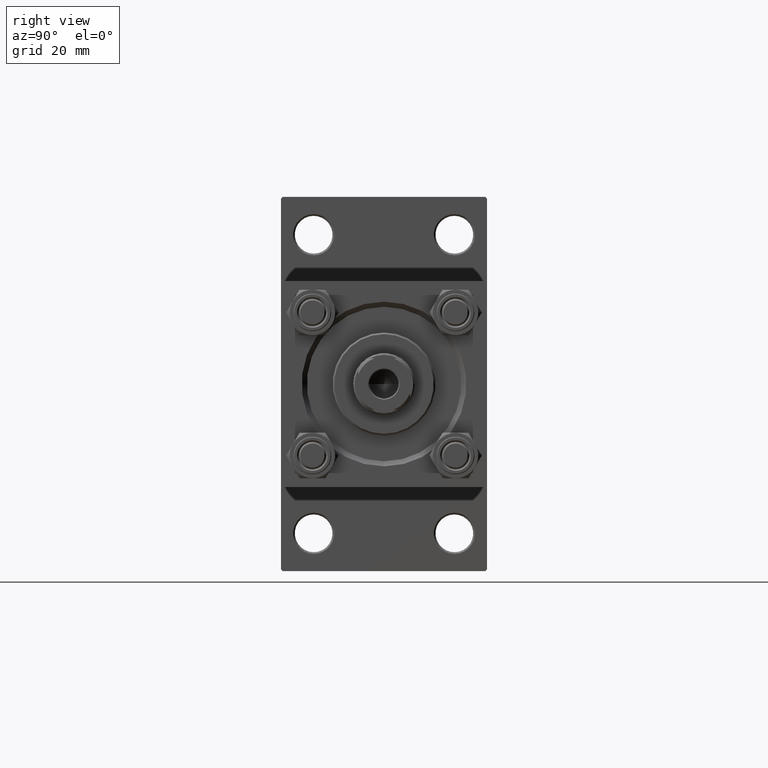
[diagram: clean part render]
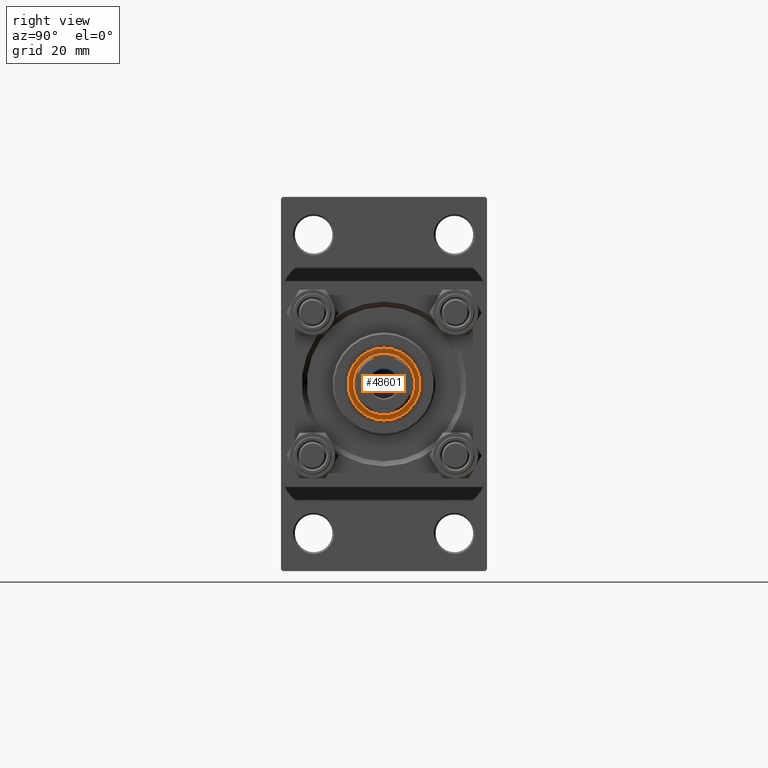
[diagram: same view with one face highlighted and labeled with its STEP entity id]
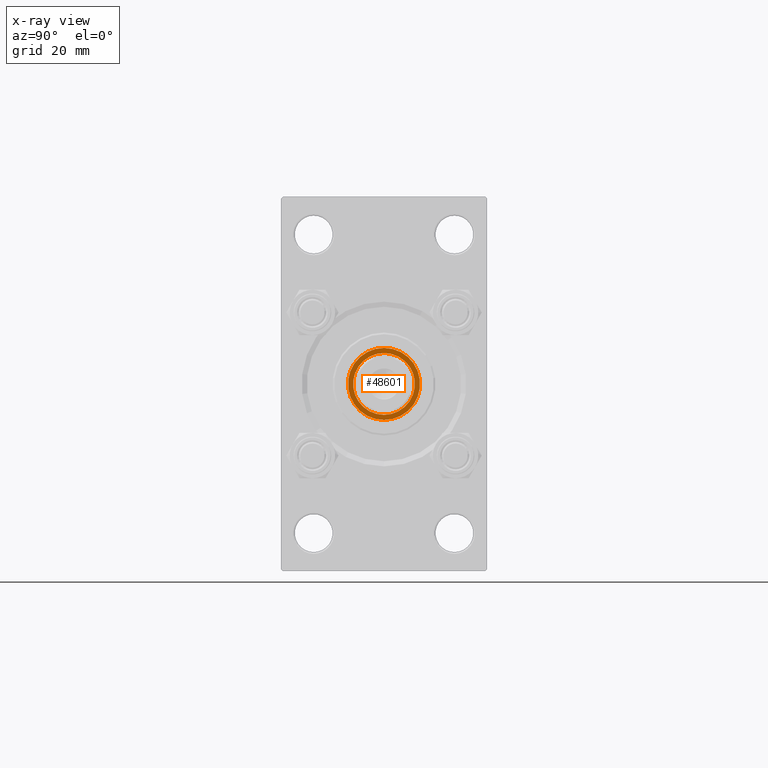
[diagram: x-ray of the same camera — body ghosted, the highlighted face saturated]
A machine part, right view. The second image highlights one B-rep face of the part: STEP entity #48601.
The next image is the same camera in x-ray: the body ghosted, the highlighted face saturated — about 0% of this face is hidden behind the body in this view.
In plain terms, the highlighted planar face has unit normal (1, 0, 0).
Its self-contained STEP definition (entity closure, byte-faithful):
#317 = AXIS2_PLACEMENT_3D ( 'NONE', #28930, #10730, #37018 ) ;
#442 = ORIENTED_EDGE ( 'NONE', *, *, #29144, .T. ) ;
#649 = DIRECTION ( 'NONE',  ( 1.000000000000000000, 0.000000000000000000, 0.000000000000000000 ) ) ;
#1851 = CARTESIAN_POINT ( 'NONE',  ( 0.000000000000000000, 0.000000000000000000, 36.19999999999999574 ) ) ;
#2127 = DIRECTION ( 'NONE',  ( 1.000000000000000000, 0.000000000000000000, -0.000000000000000000 ) ) ;
#2884 = VERTEX_POINT ( 'NONE', #6901 ) ;
#5195 = CARTESIAN_POINT ( 'NONE',  ( 10.50000000000000000, 0.000000000000000000, 36.19999999999999574 ) ) ;
#5289 = AXIS2_PLACEMENT_3D ( 'NONE', #23647, #47149, #649 ) ;
#5419 = CARTESIAN_POINT ( 'NONE',  ( 0.000000000000000000, 0.000000000000000000, 36.19999999999999574 ) ) ;
#6901 = CARTESIAN_POINT ( 'NONE',  ( -9.000000000000000000, 1.102182119232617714E-15, 36.19999999999999574 ) ) ;
#7458 = EDGE_CURVE ( 'NONE', #23821, #2884, #32561, .T. ) ;
#8526 = EDGE_CURVE ( 'NONE', #2884, #23821, #42282, .T. ) ;
#9498 = EDGE_CURVE ( 'NONE', #37317, #25671, #47044, .T. ) ;
#10730 = DIRECTION ( 'NONE',  ( -0.000000000000000000, -0.000000000000000000, -1.000000000000000000 ) ) ;
#12252 = FACE_BOUND ( 'NONE', #41167, .T. ) ;
#12963 = DIRECTION ( 'NONE',  ( 0.000000000000000000, 0.000000000000000000, 1.000000000000000000 ) ) ;
#13463 = DIRECTION ( 'NONE',  ( 1.000000000000000000, 0.000000000000000000, 0.000000000000000000 ) ) ;
#17816 = AXIS2_PLACEMENT_3D ( 'NONE', #5419, #18274, #2127 ) ;
#18274 = DIRECTION ( 'NONE',  ( 0.000000000000000000, 0.000000000000000000, 1.000000000000000000 ) ) ;
#19560 = AXIS2_PLACEMENT_3D ( 'NONE', #1851, #12963, #13463 ) ;
#20566 = FACE_OUTER_BOUND ( 'NONE', #46657, .T. ) ;
#20607 = CIRCLE ( 'NONE', #5289, 10.50000000000000000 ) ;
#23647 = CARTESIAN_POINT ( 'NONE',  ( 0.000000000000000000, 0.000000000000000000, 36.19999999999999574 ) ) ;
#23821 = VERTEX_POINT ( 'NONE', #27462 ) ;
#24756 = CARTESIAN_POINT ( 'NONE',  ( -10.50000000000000000, 1.285879139104720831E-15, 36.19999999999999574 ) ) ;
#25671 = VERTEX_POINT ( 'NONE', #24756 ) ;
#27462 = CARTESIAN_POINT ( 'NONE',  ( 9.000000000000000000, 0.000000000000000000, 36.19999999999999574 ) ) ;
#28930 = CARTESIAN_POINT ( 'NONE',  ( 0.000000000000000000, 0.000000000000000000, 36.19999999999999574 ) ) ;
#29144 = EDGE_CURVE ( 'NONE', #25671, #37317, #20607, .T. ) ;
#32489 = ORIENTED_EDGE ( 'NONE', *, *, #8526, .T. ) ;
#32561 = CIRCLE ( 'NONE', #45496, 9.000000000000000000 ) ;
#33443 = DIRECTION ( 'NONE',  ( 1.000000000000000000, 0.000000000000000000, 0.000000000000000000 ) ) ;
#37018 = DIRECTION ( 'NONE',  ( 1.000000000000000000, 0.000000000000000000, 0.000000000000000000 ) ) ;
#37317 = VERTEX_POINT ( 'NONE', #5195 ) ;
#39873 = ORIENTED_EDGE ( 'NONE', *, *, #9498, .T. ) ;
#40026 = PLANE ( 'NONE',  #17816 ) ;
#41167 = EDGE_LOOP ( 'NONE', ( #41227, #32489 ) ) ;
#41227 = ORIENTED_EDGE ( 'NONE', *, *, #7458, .T. ) ;
#41287 = CARTESIAN_POINT ( 'NONE',  ( 0.000000000000000000, 0.000000000000000000, 36.19999999999999574 ) ) ;
#42282 = CIRCLE ( 'NONE', #317, 9.000000000000000000 ) ;
#45330 = DIRECTION ( 'NONE',  ( -0.000000000000000000, -0.000000000000000000, -1.000000000000000000 ) ) ;
#45496 = AXIS2_PLACEMENT_3D ( 'NONE', #41287, #45330, #33443 ) ;
#46657 = EDGE_LOOP ( 'NONE', ( #39873, #442 ) ) ;
#47044 = CIRCLE ( 'NONE', #19560, 10.50000000000000000 ) ;
#47149 = DIRECTION ( 'NONE',  ( 0.000000000000000000, 0.000000000000000000, 1.000000000000000000 ) ) ;
#48601 = ADVANCED_FACE ( 'NONE', ( #20566, #12252 ), #40026, .T. ) ;